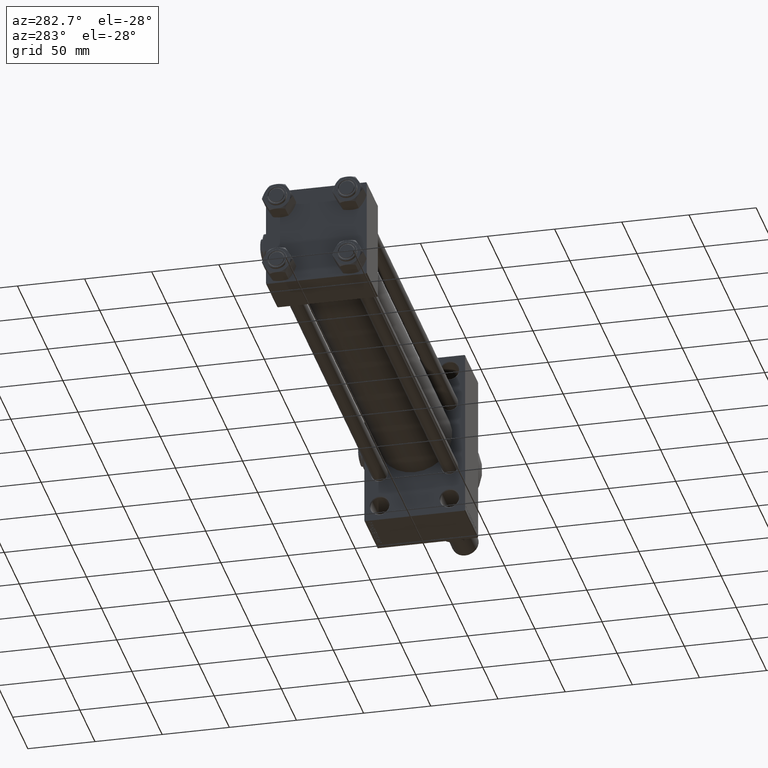
[diagram: clean part render]
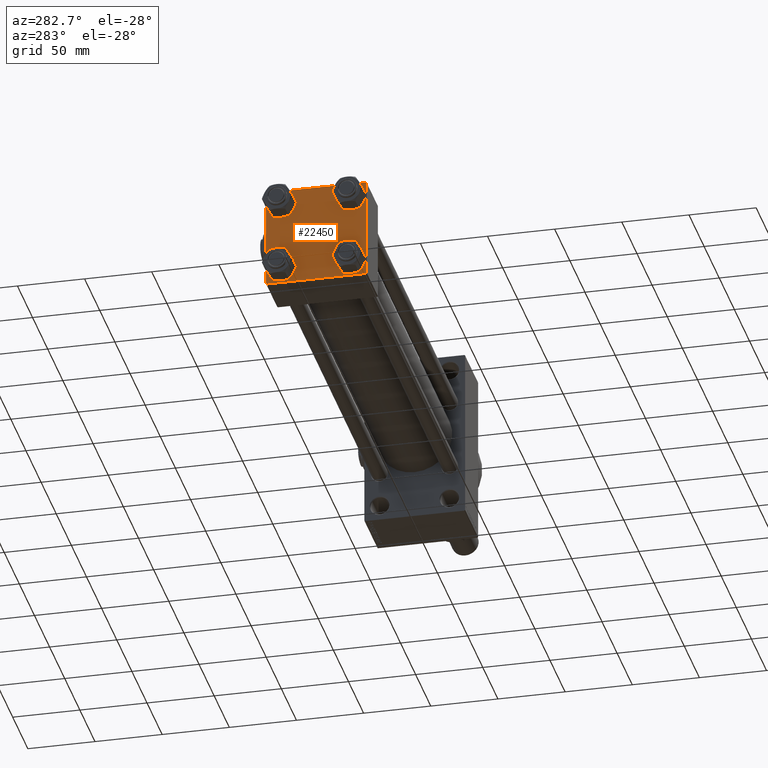
[diagram: same view with one face highlighted and labeled with its STEP entity id]
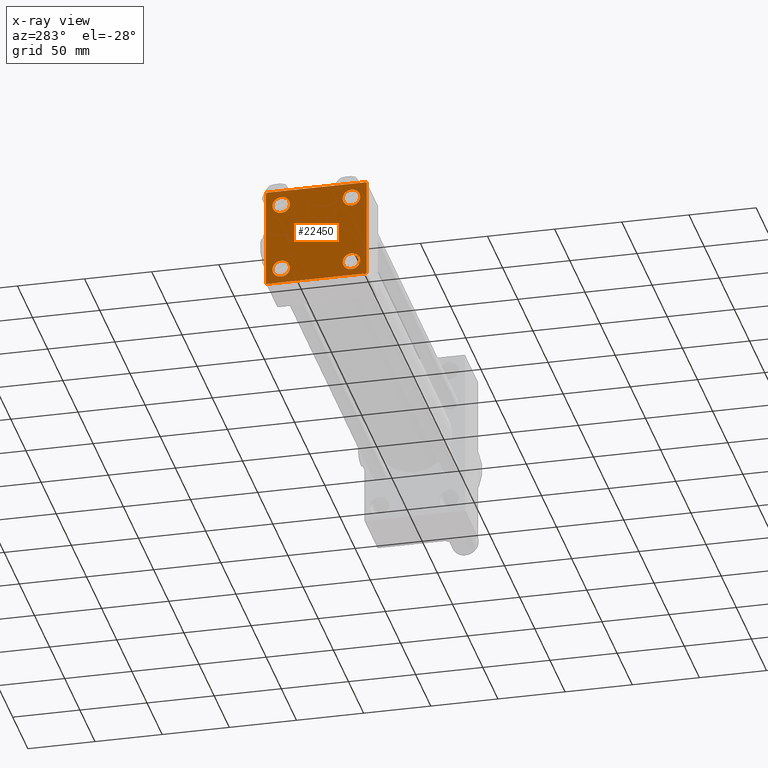
[diagram: x-ray of the same camera — body ghosted, the highlighted face saturated]
A machine part, auxiliary view. The second image highlights one B-rep face of the part: STEP entity #22450.
The next image is the same camera in x-ray: the body ghosted, the highlighted face saturated — about 0% of this face is hidden behind the body in this view.
In plain terms, the highlighted planar face has unit normal (-1, 0, 0).
Its self-contained STEP definition (entity closure, byte-faithful):
#177 = VECTOR ( 'NONE', #18284, 1000.000000000000000 ) ;
#522 = AXIS2_PLACEMENT_3D ( 'NONE', #3445, #19800, #19548 ) ;
#756 = FACE_BOUND ( 'NONE', #38522, .T. ) ;
#1107 = VECTOR ( 'NONE', #8962, 1000.000000000000000 ) ;
#1280 = LINE ( 'NONE', #37929, #14527 ) ;
#1447 = CARTESIAN_POINT ( 'NONE',  ( 0.000000000000000000, 26.14999999999999858, -32.65000000000001990 ) ) ;
#1589 = ORIENTED_EDGE ( 'NONE', *, *, #13290, .T. ) ;
#1681 = VERTEX_POINT ( 'NONE', #19460 ) ;
#2171 = CARTESIAN_POINT ( 'NONE',  ( 0.000000000000000000, 26.14999999999999858, 19.64999999999998437 ) ) ;
#2305 = ORIENTED_EDGE ( 'NONE', *, *, #51662, .T. ) ;
#3431 = ORIENTED_EDGE ( 'NONE', *, *, #29479, .T. ) ;
#3445 = CARTESIAN_POINT ( 'NONE',  ( 0.000000000000000000, -26.14999999999999147, -26.15000000000000924 ) ) ;
#3701 = DIRECTION ( 'NONE',  ( 0.000000000000000000, 0.000000000000000000, 1.000000000000000000 ) ) ;
#3824 = VERTEX_POINT ( 'NONE', #12853 ) ;
#3839 = VERTEX_POINT ( 'NONE', #46032 ) ;
#3985 = AXIS2_PLACEMENT_3D ( 'NONE', #16772, #4099, #12279 ) ;
#4099 = DIRECTION ( 'NONE',  ( 1.000000000000000000, -0.000000000000000000, 0.000000000000000000 ) ) ;
#4223 = ORIENTED_EDGE ( 'NONE', *, *, #34450, .T. ) ;
#4302 = VERTEX_POINT ( 'NONE', #38581 ) ;
#4719 = FACE_BOUND ( 'NONE', #16810, .T. ) ;
#4827 = AXIS2_PLACEMENT_3D ( 'NONE', #11076, #27179, #43225 ) ;
#5241 = DIRECTION ( 'NONE',  ( -0.000000000000000000, 0.000000000000000000, 1.000000000000000000 ) ) ;
#6462 = CIRCLE ( 'NONE', #4827, 6.500000000000023093 ) ;
#7555 = CARTESIAN_POINT ( 'NONE',  ( 0.000000000000000000, 26.14999999999999858, 32.65000000000002700 ) ) ;
#8223 = CIRCLE ( 'NONE', #3985, 6.500000000000015987 ) ;
#8940 = FACE_BOUND ( 'NONE', #14192, .T. ) ;
#8962 = DIRECTION ( 'NONE',  ( 0.000000000000000000, -1.000000000000000000, -9.251858538542971581E-17 ) ) ;
#10233 = DIRECTION ( 'NONE',  ( -0.000000000000000000, -0.7071067811865474617, -0.7071067811865474617 ) ) ;
#10503 = CARTESIAN_POINT ( 'NONE',  ( 0.000000000000000000, 26.14999999999999858, -19.64999999999998792 ) ) ;
#10780 = EDGE_CURVE ( 'NONE', #23253, #48777, #32597, .T. ) ;
#11076 = CARTESIAN_POINT ( 'NONE',  ( 0.000000000000000000, -26.14999999999999147, 26.15000000000000924 ) ) ;
#11283 = VERTEX_POINT ( 'NONE', #12840 ) ;
#11297 = VERTEX_POINT ( 'NONE', #33927 ) ;
#12151 = EDGE_LOOP ( 'NONE', ( #12504, #12846 ) ) ;
#12279 = DIRECTION ( 'NONE',  ( 0.000000000000000000, 0.000000000000000000, 1.000000000000000000 ) ) ;
#12504 = ORIENTED_EDGE ( 'NONE', *, *, #27453, .T. ) ;
#12840 = CARTESIAN_POINT ( 'NONE',  ( 0.000000000000000000, -26.14999999999999147, -19.64999999999999503 ) ) ;
#12846 = ORIENTED_EDGE ( 'NONE', *, *, #15190, .T. ) ;
#12853 = CARTESIAN_POINT ( 'NONE',  ( 0.000000000000000000, -37.00000000000000711, 37.49999999999999289 ) ) ;
#13290 = EDGE_CURVE ( 'NONE', #19789, #18555, #16543, .T. ) ;
#13427 = EDGE_CURVE ( 'NONE', #11297, #11283, #31675, .T. ) ;
#13652 = LINE ( 'NONE', #29749, #48805 ) ;
#13685 = DIRECTION ( 'NONE',  ( 0.000000000000000000, -0.7071067811865524577, 0.7071067811865426878 ) ) ;
#13928 = CARTESIAN_POINT ( 'NONE',  ( 0.000000000000000000, -26.14999999999999147, 32.65000000000003411 ) ) ;
#14192 = EDGE_LOOP ( 'NONE', ( #3431, #49978 ) ) ;
#14527 = VECTOR ( 'NONE', #13685, 1000.000000000000000 ) ;
#15190 = EDGE_CURVE ( 'NONE', #41593, #28854, #6462, .T. ) ;
#15895 = LINE ( 'NONE', #48029, #21842 ) ;
#16039 = CARTESIAN_POINT ( 'NONE',  ( 0.000000000000000000, 37.24999999999999289, 37.24999999999999289 ) ) ;
#16126 = AXIS2_PLACEMENT_3D ( 'NONE', #32220, #27997, #39579 ) ;
#16543 = CIRCLE ( 'NONE', #44288, 6.500000000000015987 ) ;
#16772 = CARTESIAN_POINT ( 'NONE',  ( 0.000000000000000000, -26.14999999999999147, -26.15000000000000924 ) ) ;
#16810 = EDGE_LOOP ( 'NONE', ( #44830, #24370 ) ) ;
#16859 = DIRECTION ( 'NONE',  ( -1.000000000000000000, 0.000000000000000000, -0.000000000000000000 ) ) ;
#17149 = CARTESIAN_POINT ( 'NONE',  ( 0.000000000000000000, 37.49999999999999289, 37.50000000000000000 ) ) ;
#18284 = DIRECTION ( 'NONE',  ( 0.000000000000000000, -1.000000000000000000, -9.251858538542972814E-17 ) ) ;
#18555 = VERTEX_POINT ( 'NONE', #10503 ) ;
#18757 = ORIENTED_EDGE ( 'NONE', *, *, #34505, .T. ) ;
#19148 = EDGE_CURVE ( 'NONE', #18555, #19789, #30961, .T. ) ;
#19460 = CARTESIAN_POINT ( 'NONE',  ( 0.000000000000000000, 36.99999999999999289, 37.50000000000000000 ) ) ;
#19548 = DIRECTION ( 'NONE',  ( 0.000000000000000000, 0.000000000000000000, 1.000000000000000000 ) ) ;
#19789 = VERTEX_POINT ( 'NONE', #1447 ) ;
#19800 = DIRECTION ( 'NONE',  ( 1.000000000000000000, -0.000000000000000000, 0.000000000000000000 ) ) ;
#20329 = DIRECTION ( 'NONE',  ( 1.000000000000000000, -0.000000000000000000, 0.000000000000000000 ) ) ;
#20551 = FACE_OUTER_BOUND ( 'NONE', #38798, .T. ) ;
#20876 = CARTESIAN_POINT ( 'NONE',  ( 0.000000000000000000, 26.14999999999999858, 26.15000000000000213 ) ) ;
#21591 = CARTESIAN_POINT ( 'NONE',  ( 0.000000000000000000, 37.24999999999998579, -37.24999999999998579 ) ) ;
#21842 = VECTOR ( 'NONE', #40407, 1000.000000000000000 ) ;
#22103 = LINE ( 'NONE', #21591, #28021 ) ;
#22450 = ADVANCED_FACE ( 'NONE', ( #36897, #4719, #756, #8940, #20551 ), #33475, .T. ) ;
#23159 = DIRECTION ( 'NONE',  ( 0.000000000000000000, 0.7071067811865474617, -0.7071067811865474617 ) ) ;
#23253 = VERTEX_POINT ( 'NONE', #2171 ) ;
#23403 = EDGE_CURVE ( 'NONE', #3839, #28717, #15895, .T. ) ;
#23683 = LINE ( 'NONE', #16039, #36289 ) ;
#23834 = EDGE_CURVE ( 'NONE', #26171, #49352, #13652, .T. ) ;
#24370 = ORIENTED_EDGE ( 'NONE', *, *, #13427, .T. ) ;
#24451 = ORIENTED_EDGE ( 'NONE', *, *, #42090, .T. ) ;
#24585 = DIRECTION ( 'NONE',  ( 0.000000000000000000, 0.000000000000000000, 1.000000000000000000 ) ) ;
#24933 = DIRECTION ( 'NONE',  ( 1.000000000000000000, -0.000000000000000000, 0.000000000000000000 ) ) ;
#25285 = CARTESIAN_POINT ( 'NONE',  ( 0.000000000000000000, -37.50000000000000000, -37.00000000000003553 ) ) ;
#25317 = LINE ( 'NONE', #17149, #1107 ) ;
#25464 = CARTESIAN_POINT ( 'NONE',  ( 0.000000000000000000, 26.14999999999999858, -26.15000000000000213 ) ) ;
#25805 = CARTESIAN_POINT ( 'NONE',  ( 0.000000000000000000, -37.00000000000002132, -37.50000000000000711 ) ) ;
#26171 = VERTEX_POINT ( 'NONE', #34170 ) ;
#26531 = ORIENTED_EDGE ( 'NONE', *, *, #23834, .T. ) ;
#27035 = CIRCLE ( 'NONE', #42187, 6.500000000000023093 ) ;
#27179 = DIRECTION ( 'NONE',  ( 1.000000000000000000, -0.000000000000000000, 0.000000000000000000 ) ) ;
#27453 = EDGE_CURVE ( 'NONE', #28854, #41593, #50636, .T. ) ;
#27997 = DIRECTION ( 'NONE',  ( 1.000000000000000000, -0.000000000000000000, 0.000000000000000000 ) ) ;
#28021 = VECTOR ( 'NONE', #10233, 1000.000000000000114 ) ;
#28717 = VERTEX_POINT ( 'NONE', #25285 ) ;
#28809 = DIRECTION ( 'NONE',  ( 1.000000000000000000, -0.000000000000000000, 0.000000000000000000 ) ) ;
#28854 = VERTEX_POINT ( 'NONE', #13928 ) ;
#29479 = EDGE_CURVE ( 'NONE', #48777, #23253, #27035, .T. ) ;
#29749 = CARTESIAN_POINT ( 'NONE',  ( 0.000000000000000000, 37.49999999999999289, 37.50000000000000000 ) ) ;
#29872 = DIRECTION ( 'NONE',  ( 1.000000000000000000, -0.000000000000000000, 0.000000000000000000 ) ) ;
#30961 = CIRCLE ( 'NONE', #37694, 6.500000000000015987 ) ;
#31213 = CARTESIAN_POINT ( 'NONE',  ( 0.000000000000000000, 37.49999999999999289, -37.50000000000000000 ) ) ;
#31675 = CIRCLE ( 'NONE', #522, 6.500000000000015987 ) ;
#32220 = CARTESIAN_POINT ( 'NONE',  ( 0.000000000000000000, -26.14999999999999147, 26.15000000000000924 ) ) ;
#32581 = VECTOR ( 'NONE', #32880, 1000.000000000000114 ) ;
#32597 = CIRCLE ( 'NONE', #39296, 6.500000000000023093 ) ;
#32880 = DIRECTION ( 'NONE',  ( -0.000000000000000000, 0.7071067811865474617, 0.7071067811865474617 ) ) ;
#33475 = PLANE ( 'NONE',  #47031 ) ;
#33501 = EDGE_CURVE ( 'NONE', #4302, #48611, #50952, .T. ) ;
#33927 = CARTESIAN_POINT ( 'NONE',  ( 0.000000000000000000, -26.14999999999999147, -32.65000000000002700 ) ) ;
#34170 = CARTESIAN_POINT ( 'NONE',  ( 0.000000000000000000, 37.49999999999999289, 37.00000000000000000 ) ) ;
#34450 = EDGE_CURVE ( 'NONE', #48611, #28717, #1280, .T. ) ;
#34505 = EDGE_CURVE ( 'NONE', #49352, #4302, #22103, .T. ) ;
#35295 = EDGE_CURVE ( 'NONE', #1681, #3824, #25317, .T. ) ;
#36289 = VECTOR ( 'NONE', #23159, 1000.000000000000114 ) ;
#36897 = FACE_BOUND ( 'NONE', #12151, .T. ) ;
#37074 = CARTESIAN_POINT ( 'NONE',  ( -0.000000000000000000, -37.25000000000000000, 37.25000000000000000 ) ) ;
#37694 = AXIS2_PLACEMENT_3D ( 'NONE', #48520, #20329, #3701 ) ;
#37929 = CARTESIAN_POINT ( 'NONE',  ( 0.000000000000000000, -37.24999999999975842, -37.25000000000027001 ) ) ;
#38433 = ORIENTED_EDGE ( 'NONE', *, *, #23403, .F. ) ;
#38522 = EDGE_LOOP ( 'NONE', ( #39521, #1589 ) ) ;
#38534 = ORIENTED_EDGE ( 'NONE', *, *, #33501, .T. ) ;
#38581 = CARTESIAN_POINT ( 'NONE',  ( 0.000000000000000000, 36.99999999999997868, -37.50000000000000000 ) ) ;
#38798 = EDGE_LOOP ( 'NONE', ( #26531, #18757, #38534, #4223, #38433, #24451, #51325, #2305 ) ) ;
#39296 = AXIS2_PLACEMENT_3D ( 'NONE', #20876, #28809, #24585 ) ;
#39521 = ORIENTED_EDGE ( 'NONE', *, *, #19148, .T. ) ;
#39579 = DIRECTION ( 'NONE',  ( 0.000000000000000000, 0.000000000000000000, 1.000000000000000000 ) ) ;
#40067 = CARTESIAN_POINT ( 'NONE',  ( 0.000000000000000000, 37.49999999999999289, -36.99999999999998579 ) ) ;
#40407 = DIRECTION ( 'NONE',  ( 0.000000000000000000, 9.251858538542971581E-17, -1.000000000000000000 ) ) ;
#41179 = EDGE_CURVE ( 'NONE', #11283, #11297, #8223, .T. ) ;
#41276 = DIRECTION ( 'NONE',  ( 0.000000000000000000, 0.000000000000000000, 1.000000000000000000 ) ) ;
#41546 = LINE ( 'NONE', #37074, #32581 ) ;
#41593 = VERTEX_POINT ( 'NONE', #46891 ) ;
#41601 = DIRECTION ( 'NONE',  ( 0.000000000000000000, 0.000000000000000000, -1.000000000000000000 ) ) ;
#42090 = EDGE_CURVE ( 'NONE', #3839, #3824, #41546, .T. ) ;
#42187 = AXIS2_PLACEMENT_3D ( 'NONE', #49880, #29872, #50914 ) ;
#43225 = DIRECTION ( 'NONE',  ( 0.000000000000000000, 0.000000000000000000, 1.000000000000000000 ) ) ;
#44288 = AXIS2_PLACEMENT_3D ( 'NONE', #25464, #24933, #41276 ) ;
#44830 = ORIENTED_EDGE ( 'NONE', *, *, #41179, .T. ) ;
#45567 = CARTESIAN_POINT ( 'NONE',  ( 0.000000000000000000, 0.000000000000000000, 0.000000000000000000 ) ) ;
#46032 = CARTESIAN_POINT ( 'NONE',  ( 0.000000000000000000, -37.50000000000000711, 36.99999999999999289 ) ) ;
#46891 = CARTESIAN_POINT ( 'NONE',  ( 0.000000000000000000, -26.14999999999999147, 19.64999999999999147 ) ) ;
#47031 = AXIS2_PLACEMENT_3D ( 'NONE', #45567, #16859, #5241 ) ;
#48029 = CARTESIAN_POINT ( 'NONE',  ( 0.000000000000000000, -37.50000000000000711, 37.49999999999999289 ) ) ;
#48520 = CARTESIAN_POINT ( 'NONE',  ( 0.000000000000000000, 26.14999999999999858, -26.15000000000000213 ) ) ;
#48611 = VERTEX_POINT ( 'NONE', #25805 ) ;
#48777 = VERTEX_POINT ( 'NONE', #7555 ) ;
#48805 = VECTOR ( 'NONE', #41601, 1000.000000000000000 ) ;
#49352 = VERTEX_POINT ( 'NONE', #40067 ) ;
#49880 = CARTESIAN_POINT ( 'NONE',  ( 0.000000000000000000, 26.14999999999999858, 26.15000000000000213 ) ) ;
#49978 = ORIENTED_EDGE ( 'NONE', *, *, #10780, .T. ) ;
#50636 = CIRCLE ( 'NONE', #16126, 6.500000000000023093 ) ;
#50914 = DIRECTION ( 'NONE',  ( 0.000000000000000000, 0.000000000000000000, 1.000000000000000000 ) ) ;
#50952 = LINE ( 'NONE', #31213, #177 ) ;
#51325 = ORIENTED_EDGE ( 'NONE', *, *, #35295, .F. ) ;
#51662 = EDGE_CURVE ( 'NONE', #1681, #26171, #23683, .T. ) ;